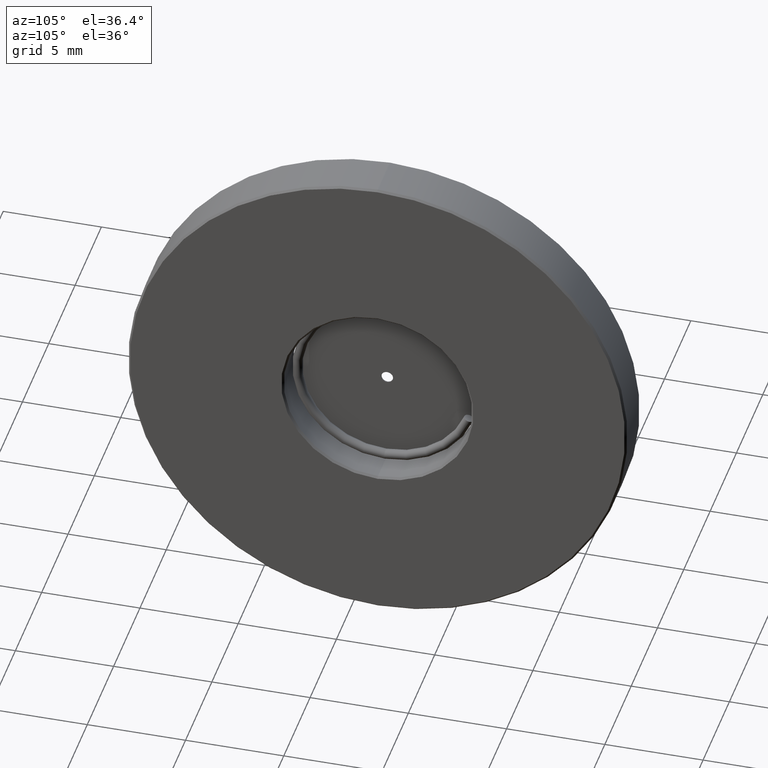
[diagram: clean part render]
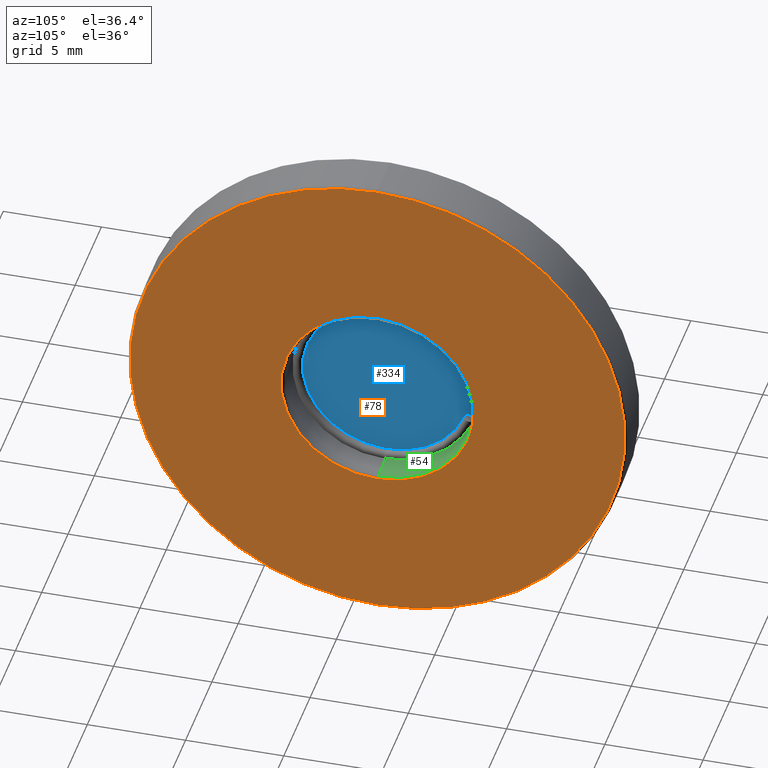
[diagram: same view with three faces highlighted in distinct colors, each labeled with its STEP entity id]
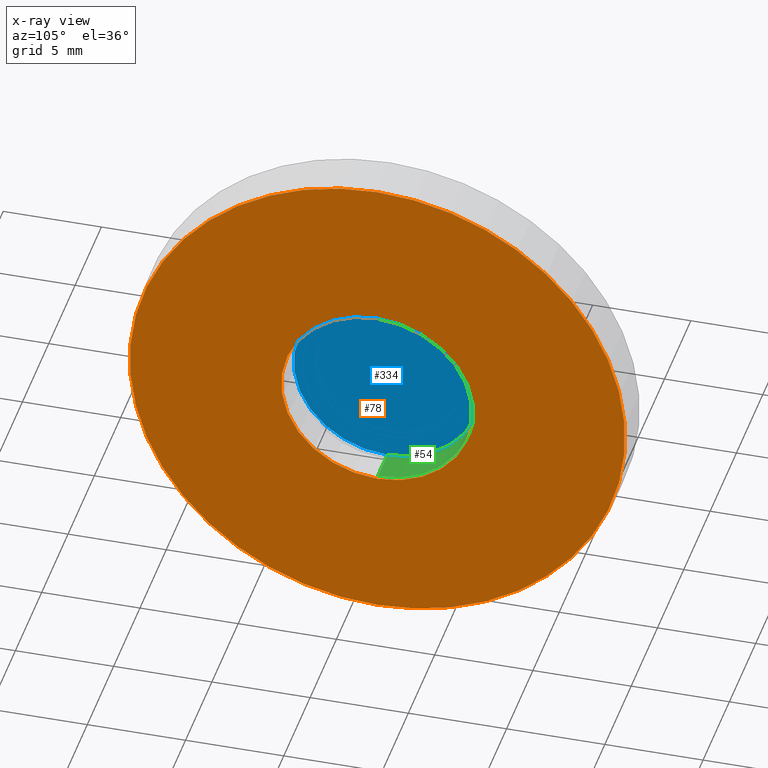
[diagram: x-ray of the same camera — body ghosted, the three highlighted faces saturated]
A machine part, auxiliary view with three faces highlighted in distinct colors.
The next image is the same camera in x-ray (body ghosted, the three faces saturated) — at least one of them is partly hidden behind the body in this view.
Their STEP definitions:

[orange] entity #78 — the highlighted planar face has unit normal (1, 0, 0).
#37 = CARTESIAN_POINT ( 'NONE',  ( -2.434863851253203482, 1.436758841085141070, 25.39999999999999858 ) ) ;
#45 = VERTEX_POINT ( 'NONE', #149 ) ;
#60 = DIRECTION ( 'NONE',  ( 0.0000000000000000000, 0.0000000000000000000, -1.000000000000000000 ) ) ;
#73 = CIRCLE ( 'NONE', #87, 4.899999999999997691 ) ;
#78 = ADVANCED_FACE ( 'NONE', ( #398, #198 ), #734, .T. ) ;
#83 = VERTEX_POINT ( 'NONE', #98 ) ;
#87 = AXIS2_PLACEMENT_3D ( 'NONE', #323, #142, #574 ) ;
#91 = AXIS2_PLACEMENT_3D ( 'NONE', #801, #278, #346 ) ;
#98 = CARTESIAN_POINT ( 'NONE',  ( -2.434863851253203482, 1.436758841085141736, 30.29999999999999716 ) ) ;
#140 = EDGE_CURVE ( 'NONE', #45, #280, #683, .T. ) ;
#142 = DIRECTION ( 'NONE',  ( -1.000000000000000000, -0.0000000000000000000, -0.0000000000000000000 ) ) ;
#149 = CARTESIAN_POINT ( 'NONE',  ( -2.434863851253203482, 1.436758841085142402, 12.79999999999999716 ) ) ;
#157 = EDGE_CURVE ( 'NONE', #83, #665, #228, .T. ) ;
#167 = AXIS2_PLACEMENT_3D ( 'NONE', #295, #806, #415 ) ;
#169 = DIRECTION ( 'NONE',  ( -1.000000000000000000, -0.0000000000000000000, -0.0000000000000000000 ) ) ;
#193 = CARTESIAN_POINT ( 'NONE',  ( -2.434863851253203482, 1.436758841085141070, 20.50000000000000000 ) ) ;
#198 = FACE_OUTER_BOUND ( 'NONE', #584, .T. ) ;
#228 = CIRCLE ( 'NONE', #457, 4.899999999999997691 ) ;
#263 = CARTESIAN_POINT ( 'NONE',  ( -2.434863851253203482, 1.436758841085141070, 25.39999999999999858 ) ) ;
#278 = DIRECTION ( 'NONE',  ( 1.000000000000000000, 0.0000000000000000000, 0.0000000000000000000 ) ) ;
#280 = VERTEX_POINT ( 'NONE', #562 ) ;
#295 = CARTESIAN_POINT ( 'NONE',  ( -2.434863851253203482, 1.436758841085141070, 25.39999999999999858 ) ) ;
#312 = DIRECTION ( 'NONE',  ( 1.000000000000000000, 0.0000000000000000000, 0.0000000000000000000 ) ) ;
#323 = CARTESIAN_POINT ( 'NONE',  ( -2.434863851253203482, 1.436758841085141070, 25.39999999999999858 ) ) ;
#346 = DIRECTION ( 'NONE',  ( 0.0000000000000000000, 0.0000000000000000000, -1.000000000000000000 ) ) ;
#360 = ORIENTED_EDGE ( 'NONE', *, *, #157, .T. ) ;
#398 = FACE_BOUND ( 'NONE', #803, .T. ) ;
#415 = DIRECTION ( 'NONE',  ( 0.0000000000000000000, 0.0000000000000000000, -1.000000000000000000 ) ) ;
#457 = AXIS2_PLACEMENT_3D ( 'NONE', #37, #169, #553 ) ;
#471 = ORIENTED_EDGE ( 'NONE', *, *, #140, .T. ) ;
#553 = DIRECTION ( 'NONE',  ( 0.0000000000000000000, 0.0000000000000000000, -1.000000000000000000 ) ) ;
#554 = EDGE_CURVE ( 'NONE', #280, #45, #764, .T. ) ;
#562 = CARTESIAN_POINT ( 'NONE',  ( -2.434863851253203482, 1.436758841085141070, 38.00000000000000711 ) ) ;
#574 = DIRECTION ( 'NONE',  ( 0.0000000000000000000, 0.0000000000000000000, -1.000000000000000000 ) ) ;
#584 = EDGE_LOOP ( 'NONE', ( #820, #471 ) ) ;
#627 = ORIENTED_EDGE ( 'NONE', *, *, #726, .T. ) ;
#662 = AXIS2_PLACEMENT_3D ( 'NONE', #263, #312, #60 ) ;
#665 = VERTEX_POINT ( 'NONE', #193 ) ;
#683 = CIRCLE ( 'NONE', #167, 12.60000000000000142 ) ;
#726 = EDGE_CURVE ( 'NONE', #665, #83, #73, .T. ) ;
#734 = PLANE ( 'NONE',  #91 ) ;
#764 = CIRCLE ( 'NONE', #662, 12.60000000000000142 ) ;
#801 = CARTESIAN_POINT ( 'NONE',  ( -2.434863851253203482, 1.436758841085141070, 25.39999999999999858 ) ) ;
#803 = EDGE_LOOP ( 'NONE', ( #627, #360 ) ) ;
#806 = DIRECTION ( 'NONE',  ( 1.000000000000000000, 0.0000000000000000000, 0.0000000000000000000 ) ) ;
#820 = ORIENTED_EDGE ( 'NONE', *, *, #554, .T. ) ;

[blue] entity #334 — the highlighted planar face has unit normal (1, 0, -0).
#2 = VERTEX_POINT ( 'NONE', #586 ) ;
#26 = CARTESIAN_POINT ( 'NONE',  ( -4.284863851253205347, 1.436758841085140181, 25.39999999999999858 ) ) ;
#29 = CARTESIAN_POINT ( 'NONE',  ( -4.284863851253205347, 1.436758841085139515, 20.64999999999999858 ) ) ;
#32 = DIRECTION ( 'NONE',  ( 0.0000000000000000000, 0.0000000000000000000, 1.000000000000000000 ) ) ;
#33 = AXIS2_PLACEMENT_3D ( 'NONE', #216, #729, #96 ) ;
#46 = CARTESIAN_POINT ( 'NONE',  ( -4.284863851253205347, 1.436758841085140181, 25.39999999999999858 ) ) ;
#47 = VERTEX_POINT ( 'NONE', #29 ) ;
#67 = EDGE_CURVE ( 'NONE', #2, #682, #342, .T. ) ;
#85 = CARTESIAN_POINT ( 'NONE',  ( -4.284863851253205347, 1.436758841085140181, 30.14999999999999858 ) ) ;
#93 = FACE_OUTER_BOUND ( 'NONE', #358, .T. ) ;
#96 = DIRECTION ( 'NONE',  ( 0.0000000000000000000, 0.0000000000000000000, 1.000000000000000000 ) ) ;
#110 = VERTEX_POINT ( 'NONE', #85 ) ;
#111 = EDGE_CURVE ( 'NONE', #682, #2, #125, .T. ) ;
#125 = CIRCLE ( 'NONE', #441, 0.3000000000000016542 ) ;
#180 = PLANE ( 'NONE',  #690 ) ;
#188 = CIRCLE ( 'NONE', #608, 4.750000000000000888 ) ;
#216 = CARTESIAN_POINT ( 'NONE',  ( -4.284863851253205347, 1.436758841085140181, 25.39999999999999858 ) ) ;
#235 = DIRECTION ( 'NONE',  ( 0.0000000000000000000, 0.0000000000000000000, 1.000000000000000000 ) ) ;
#248 = EDGE_CURVE ( 'NONE', #47, #110, #188, .T. ) ;
#282 = DIRECTION ( 'NONE',  ( 1.000000000000000000, 0.0000000000000000000, 0.0000000000000000000 ) ) ;
#289 = CIRCLE ( 'NONE', #556, 4.750000000000000888 ) ;
#310 = DIRECTION ( 'NONE',  ( 1.000000000000000000, 0.0000000000000000000, 0.0000000000000000000 ) ) ;
#334 = ADVANCED_FACE ( 'NONE', ( #93, #613 ), #180, .T. ) ;
#342 = CIRCLE ( 'NONE', #33, 0.3000000000000016542 ) ;
#358 = EDGE_LOOP ( 'NONE', ( #652, #804 ) ) ;
#427 = DIRECTION ( 'NONE',  ( 0.0000000000000000000, 0.0000000000000000000, 1.000000000000000000 ) ) ;
#441 = AXIS2_PLACEMENT_3D ( 'NONE', #26, #282, #32 ) ;
#442 = EDGE_LOOP ( 'NONE', ( #606, #728 ) ) ;
#556 = AXIS2_PLACEMENT_3D ( 'NONE', #792, #719, #730 ) ;
#570 = CARTESIAN_POINT ( 'NONE',  ( -4.284863851253205347, 1.436758841085140181, 25.39999999999999858 ) ) ;
#586 = CARTESIAN_POINT ( 'NONE',  ( -4.284863851253205347, 1.436758841085140181, 25.69999999999999929 ) ) ;
#606 = ORIENTED_EDGE ( 'NONE', *, *, #111, .F. ) ;
#608 = AXIS2_PLACEMENT_3D ( 'NONE', #46, #310, #235 ) ;
#613 = FACE_BOUND ( 'NONE', #442, .T. ) ;
#652 = ORIENTED_EDGE ( 'NONE', *, *, #814, .T. ) ;
#682 = VERTEX_POINT ( 'NONE', #751 ) ;
#690 = AXIS2_PLACEMENT_3D ( 'NONE', #570, #700, #427 ) ;
#700 = DIRECTION ( 'NONE',  ( 1.000000000000000000, 0.0000000000000000000, -0.0000000000000000000 ) ) ;
#719 = DIRECTION ( 'NONE',  ( 1.000000000000000000, 0.0000000000000000000, 0.0000000000000000000 ) ) ;
#728 = ORIENTED_EDGE ( 'NONE', *, *, #67, .F. ) ;
#729 = DIRECTION ( 'NONE',  ( 1.000000000000000000, 0.0000000000000000000, 0.0000000000000000000 ) ) ;
#730 = DIRECTION ( 'NONE',  ( 0.0000000000000000000, 0.0000000000000000000, 1.000000000000000000 ) ) ;
#751 = CARTESIAN_POINT ( 'NONE',  ( -4.284863851253205347, 1.436758841085140181, 25.09999999999999787 ) ) ;
#792 = CARTESIAN_POINT ( 'NONE',  ( -4.284863851253205347, 1.436758841085140181, 25.39999999999999858 ) ) ;
#804 = ORIENTED_EDGE ( 'NONE', *, *, #248, .T. ) ;
#814 = EDGE_CURVE ( 'NONE', #110, #47, #289, .T. ) ;

[green] entity #54 — the highlighted cylindrical surface (partial cylindrical patch) has radius 4.8 mm, axis along (1, 0, 0).
#7 = FACE_OUTER_BOUND ( 'NONE', #541, .T. ) ;
#10 = AXIS2_PLACEMENT_3D ( 'NONE', #670, #535, #403 ) ;
#40 = EDGE_CURVE ( 'NONE', #576, #367, #466, .T. ) ;
#54 = ADVANCED_FACE ( 'NONE', ( #7 ), #74, .F. ) ;
#56 = CIRCLE ( 'NONE', #534, 4.799999999999998934 ) ;
#74 = CYLINDRICAL_SURFACE ( 'NONE', #819, 4.799999999999998934 ) ;
#112 = VERTEX_POINT ( 'NONE', #802 ) ;
#117 = CARTESIAN_POINT ( 'NONE',  ( -18.51131405003491537, 1.436758841085141070, 20.60000000000000142 ) ) ;
#127 = CARTESIAN_POINT ( 'NONE',  ( -2.534863851253202682, 1.436758841085141070, 25.39999999999999858 ) ) ;
#223 = DIRECTION ( 'NONE',  ( 0.0000000000000000000, 0.0000000000000000000, -1.000000000000000000 ) ) ;
#259 = DIRECTION ( 'NONE',  ( 1.000000000000000000, -0.0000000000000000000, -0.0000000000000000000 ) ) ;
#266 = EDGE_CURVE ( 'NONE', #576, #112, #290, .T. ) ;
#290 = LINE ( 'NONE', #117, #484 ) ;
#320 = ORIENTED_EDGE ( 'NONE', *, *, #40, .F. ) ;
#321 = DIRECTION ( 'NONE',  ( 1.000000000000000000, 0.0000000000000000000, 0.0000000000000000000 ) ) ;
#367 = VERTEX_POINT ( 'NONE', #754 ) ;
#403 = DIRECTION ( 'NONE',  ( 0.0000000000000000000, 0.0000000000000000000, -1.000000000000000000 ) ) ;
#445 = CARTESIAN_POINT ( 'NONE',  ( -2.534863851253202682, 1.436758841085141736, 30.19999999999999929 ) ) ;
#466 = CIRCLE ( 'NONE', #10, 4.799999999999998934 ) ;
#484 = VECTOR ( 'NONE', #759, 1000.000000000000000 ) ;
#504 = CARTESIAN_POINT ( 'NONE',  ( -4.334863851253203393, 1.436758841085141070, 20.60000000000000142 ) ) ;
#517 = EDGE_CURVE ( 'NONE', #112, #762, #56, .T. ) ;
#526 = EDGE_CURVE ( 'NONE', #367, #762, #653, .T. ) ;
#534 = AXIS2_PLACEMENT_3D ( 'NONE', #127, #259, #641 ) ;
#535 = DIRECTION ( 'NONE',  ( 1.000000000000000000, 0.0000000000000000000, 0.0000000000000000000 ) ) ;
#541 = EDGE_LOOP ( 'NONE', ( #685, #320, #618, #612 ) ) ;
#576 = VERTEX_POINT ( 'NONE', #504 ) ;
#582 = CARTESIAN_POINT ( 'NONE',  ( -18.51131405003491537, 1.436758841085141736, 30.19999999999999929 ) ) ;
#598 = CARTESIAN_POINT ( 'NONE',  ( -18.51131405003491537, 1.436758841085141070, 25.39999999999999858 ) ) ;
#612 = ORIENTED_EDGE ( 'NONE', *, *, #517, .T. ) ;
#618 = ORIENTED_EDGE ( 'NONE', *, *, #266, .T. ) ;
#641 = DIRECTION ( 'NONE',  ( 0.0000000000000000000, 0.0000000000000000000, -1.000000000000000000 ) ) ;
#653 = LINE ( 'NONE', #582, #705 ) ;
#670 = CARTESIAN_POINT ( 'NONE',  ( -4.334863851253203393, 1.436758841085141070, 25.39999999999999858 ) ) ;
#671 = DIRECTION ( 'NONE',  ( 1.000000000000000000, 0.0000000000000000000, 0.0000000000000000000 ) ) ;
#685 = ORIENTED_EDGE ( 'NONE', *, *, #526, .F. ) ;
#705 = VECTOR ( 'NONE', #321, 1000.000000000000000 ) ;
#754 = CARTESIAN_POINT ( 'NONE',  ( -4.334863851253203393, 1.436758841085141736, 30.19999999999999929 ) ) ;
#759 = DIRECTION ( 'NONE',  ( 1.000000000000000000, 0.0000000000000000000, 0.0000000000000000000 ) ) ;
#762 = VERTEX_POINT ( 'NONE', #445 ) ;
#802 = CARTESIAN_POINT ( 'NONE',  ( -2.534863851253202682, 1.436758841085141070, 20.60000000000000142 ) ) ;
#819 = AXIS2_PLACEMENT_3D ( 'NONE', #598, #671, #223 ) ;